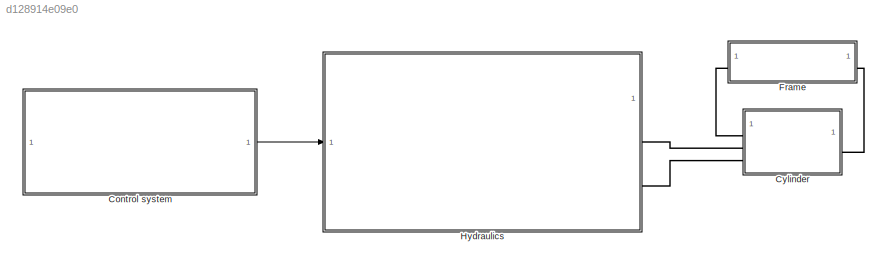
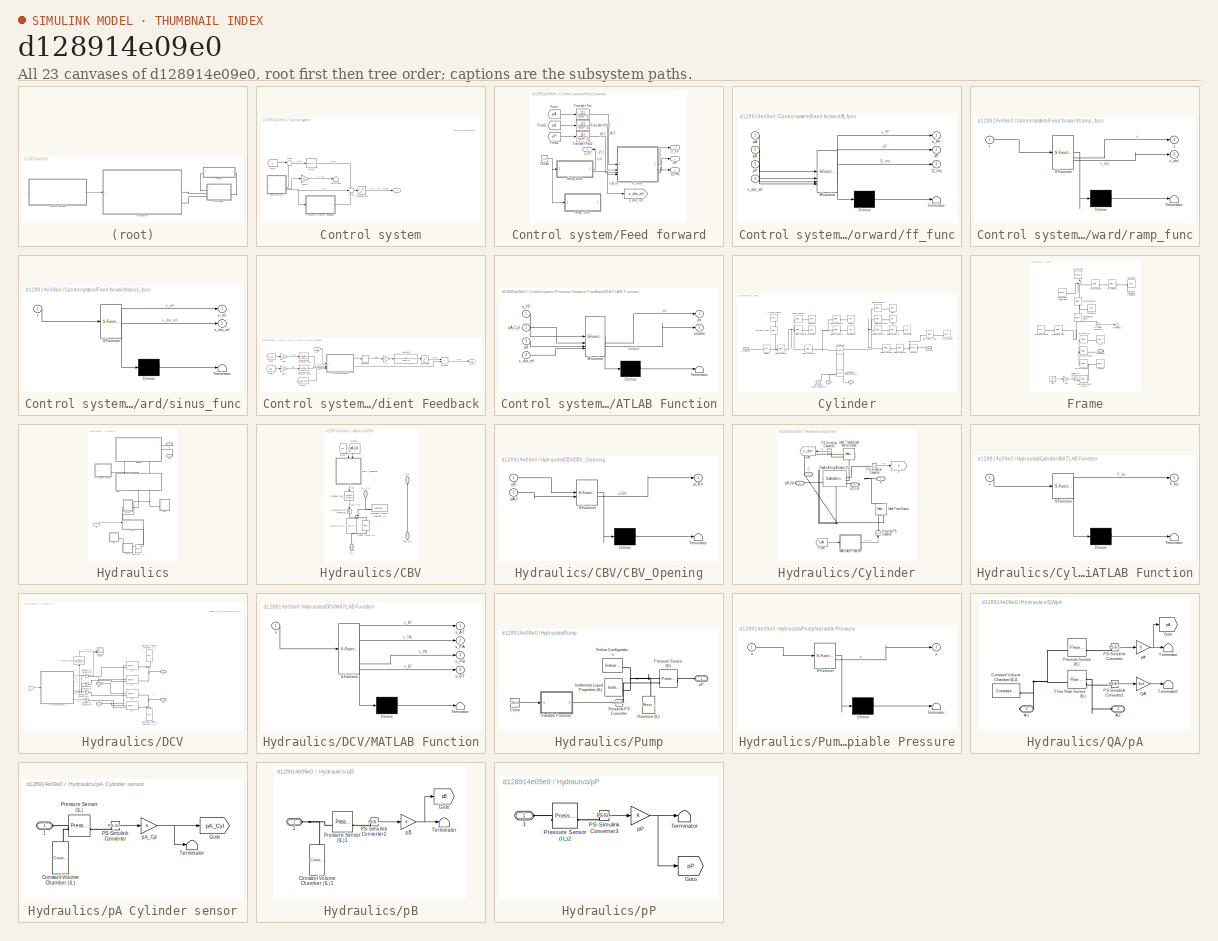
[diagram: thumbnail index - all 23 canvases of the model, root first then tree order]
MODEL slx_d128914e09e0
KIND model
CONFIG AbsTol = auto
CONFIG EnableMultiTasking = off
CONFIG FixedStep = auto
CONFIG MaxStep = auto
CONFIG MinStep = auto
CONFIG RelTol = 1e-3
CONFIG SampleTimeConstraint = Unconstrained
CONFIG SolverName = VariableStepAuto
CONFIG StartTime = 0.0
CONFIG StopTime = 80
WORKSPACE source: MATLAB code (in-file)
WORKSPACE code: clear;
WORKSPACE rho = 875
WORKSPACE beta = 1000
WORKSPACE pP = 10e6  (= 10000000)
WORKSPACE pA_Cyl_Initial = 67
WORKSPACE dp0 = 20e5  (= 2000000)
WORKSPACE Q0 = 18/6e4  (= 0.0003)
WORKSPACE Cd = 0.55
WORKSPACE AdMax_SI = Q0/(Cd*(2/rho*dp0)^0.5)  (= 8.06738152241e-06)
WORKSPACE AdMax = AdMax_SI*1e6  (= 8.06738152241)
WORKSPACE Tau_DCV = 0.1
WORKSPACE TauP = 1/(2*pi*5)  (= 0.0318309886184)
WORKSPACE u_dead_up = 0.236
WORKSPACE u_dead_down = 0.206
WORKSPACE spool_dead_up = 1.1182 * u_dead_up   - 0.0325  (= 0.2313952)
WORKSPACE spool_dead_down = 1.1075 * u_dead_down - 0.0416  (= 0.186545)
WORKSPACE p_spool_of_Kv_up = [0.0018653, -0.033672,  0.22033, -0.65618,  0.83411, -0.047269, 0.26252]
WORKSPACE p_spool_of_Kv_down = [0.00098272, -0.017507,  0.11599, -0.34851,  0.41222,  0.17643,  0.2076]
WORKSPACE slope_Kv_up = 0.3410  (= 0.341)
WORKSPACE slope_Kv_down = 0.4248
WORKSPACE Kv_range = linspace(0.09, 4, 10000)
WORKSPACE spool_up = polyval(p_spool_of_Kv_up,   Kv_range)
WORKSPACE spool_down = polyval(p_spool_of_Kv_down, Kv_range)
WORKSPACE u_breakpoints = 0.25:0.05:1.0
WORKSPACE spool_bp_up = 1.1182 * u_breakpoints - 0.0325
WORKSPACE spool_bp_down = 1.1075 * u_breakpoints - 0.0416
WORKSPACE Kv_bp_up = zeros(1, length(u_breakpoints))
WORKSPACE Kv_bp_down = zeros(1, length(u_breakpoints))
WORKSPACE code: for i = 1:length(u_breakpoints)
WORKSPACE code: if u_breakpoints(i) <= 0.25
WORKSPACE code: Kv_bp_up(i)   = (spool_bp_up(i)   - spool_dead_up)   / slope_Kv_up;
WORKSPACE code: Kv_bp_down(i) = (spool_bp_down(i) - spool_dead_down) / slope_Kv_down;
WORKSPACE code: else
WORKSPACE code: [~, idx_up]   = min(abs(spool_up   - spool_bp_up(i)));
WORKSPACE code: [~, idx_down] = min(abs(spool_down - spool_bp_down(i)));
WORKSPACE code: Kv_bp_up(i)   = Kv_range(idx_up);
WORKSPACE code: Kv_bp_down(i) = Kv_range(idx_down);
WORKSPACE code: end
WORKSPACE code: end
WORKSPACE code: [~, idx_max_up]   = max(spool_up);
WORKSPACE code: [~, idx_max_down] = max(spool_down);
WORKSPACE Kv_max_up = Kv_range(idx_max_up)
WORKSPACE Kv_max_down = Kv_range(idx_max_down)
WORKSPACE Kv_unit_conv = sqrt(1e-5) / 6e4
WORKSPACE A_bp_up = (Kv_bp_up   * Kv_unit_conv) / (Cd * sqrt(2/rho))
WORKSPACE A_bp_down = (Kv_bp_down * Kv_unit_conv) / (Cd * sqrt(2/rho))
WORKSPACE A_max_up = (Kv_max_up  * Kv_unit_conv) / (Cd * sqrt(2/rho))
WORKSPACE A_max_down = (Kv_max_down* Kv_unit_conv) / (Cd * sqrt(2/rho))
WORKSPACE orifice_area_up = [1e-9, A_bp_up,   A_max_up]
WORKSPACE orifice_area_down = [1e-9, A_bp_down, A_max_down]
WORKSPACE u_max_pos = 1.05
WORKSPACE control_pos_up = [0, spool_bp_up,   1.1182 * u_max_pos - 0.0325]
WORKSPACE control_pos_down = [0, spool_bp_down, 1.1075 * u_max_pos - 0.0416]
WORKSPACE alpha = 5
WORKSPACE pCr_A = 215e5  (= 21500000)
WORKSPACE dp_open_A = 150e5  (= 15000000)
WORKSPACE Cd_CBV = 0.8
WORKSPACE AdMax_CBV = (60 / 6e4) / sqrt(2/rho * 16e5) / Cd_CBV
WORKSPACE d = 65
WORKSPACE dr = 35
WORKSPACE A = pi*d^2/4  (= 3318.30724035)
WORKSPACE Ar = pi*dr^2/4  (= 962.112750162)
WORKSPACE Aa = A - Ar  (= 2356.19449019)
WORKSPACE h = 500
WORKSPACE L0 = 272
WORKSPACE dx = 0
WORKSPACE L = h + L0 + dx  (= 772)
WORKSPACE phiA = Aa/A  (= 0.710059171598)
WORKSPACE m = 75*4 + 20 + 90  (= 410)
WORKSPACE g = 9.81
WORKSPACE MG = m*g  (= 4022.1)
WORKSPACE x_Init = 100
WORKSPACE Cx = 427
WORKSPACE Cz = -1057
WORKSPACE theta_Init = 73.04- 90  (= -16.96)
WORKSPACE thetaDot_Init = 0
WORKSPACE L1 = 3680
WORKSPACE B1 = 100
WORKSPACE H1 = 150
WORKSPACE t1 = 6
WORKSPACE revBasePinDia = 60
WORKSPACE revBasePinLength = 185.5
WORKSPACE rEar = 35
WORKSPACE tEar = 30
WORKSPACE earToCylTop = 52.45
WORKSPACE earToCylBot = 40.62
WORKSPACE cylDia = 75
WORKSPACE cylLength = 682
WORKSPACE rodLength = 565.26
WORKSPACE rodDia = 35
WORKSPACE rodToCyl = 132
WORKSPACE revCylPinDia = 25
WORKSPACE revCylPinLength = 84
WORKSPACE rPiston = 65/2  (= 32.5)
WORKSPACE tPiston = 40
WORKSPACE abx = 564.99
WORKSPACE aby = 133
WORKSPACE L2 = 210
WORKSPACE B2 = 700
WORKSPACE H2 = 300
WORKSPACE dY_PL_Beam = 75
WORKSPACE beam_mass = 415.740  (= 415.74)
WORKSPACE beam_COM = [3216.15, 61.48, 0.00]
WORKSPACE cyl_house_mass = 10.46699
WORKSPACE cyl_house_COM = [260.99, 0.16, 0.00]
WORKSPACE cyl_rod_mass = 4.81658
WORKSPACE cyl_rod_COM = [-292.43, 0.00, 0.00]
WORKSPACE beam_MOI = [17.5673, 453.1288, 442.0275]
WORKSPACE beam_POI = [13.7279, 0.00000, 0.00000]
WORKSPACE cyl_house_MOI = [0.00969, 0.50582, 0.50623]
WORKSPACE cyl_house_POI = [-0.00039, 0.00000, 0.00000]
WORKSPACE cyl_rod_MOI = [0.00142, 0.20919, 0.20942]
WORKSPACE cyl_rod_POI = [0.00000, 0.00000, 0.00000]
WORKSPACE F_C = 609
WORKSPACE v_th = 1e-3  (= 0.001)
WORKSPACE dt = 0.001
WORKSPACE TauF = 0.01
WORKSPACE Kf = 0.0005
BLOCK [SubSystem] Control system
BLOCK [SubSystem] Control system/Feed forward
BLOCK [Clock] Control system/Feed forward/Clock1
BLOCK [From] Control system/Feed forward/From
  GotoTag = pA
  TagVisibility = global
BLOCK [From] Control system/Feed forward/From1
  GotoTag = pB
  TagVisibility = global
BLOCK [From] Control system/Feed forward/From2
  GotoTag = pP
  TagVisibility = global
BLOCK [Outport] Control system/Feed forward/Q_req
  Port = 3
BLOCK [TransferFcn] Control system/Feed forward/Transfer Fcn
  Denominator = [TauP 1]
BLOCK [TransferFcn] Control system/Feed forward/Transfer Fcn1
  Denominator = [TauP 1]
BLOCK [TransferFcn] Control system/Feed forward/Transfer Fcn2
  Denominator = [TauP 1]
BLOCK [Outport] Control system/Feed forward/dP
BLOCK [SubSystem] Control system/Feed forward/ff_func
  ErrorFcn = Stateflow.Translate.translate
  PermitHierarchicalResolution = ExplicitOnly
  SFBlockType = MATLAB Function
  TreatAsAtomicUnit = on
BLOCK [Demux] Control system/Feed forward/ff_func/ Demux 
  Outputs = 1
BLOCK [S-Function] Control system/Feed forward/ff_func/ SFunction 
  EnableBusSupport = off
  FunctionName = sf_sfun
  Parameters = A,Aa,slope_Kv_down,slope_Kv_up,spool_dead_down,spool_dead_up
  PortCounts = [4 4]
  SFcnIsStateOwnerBlock = off
  SFunctionDeploymentMode = off
  Tag = Stateflow S-Function 3
BLOCK [Terminator] Control system/Feed forward/ff_func/ Terminator 
BLOCK [Outport] Control system/Feed forward/ff_func/Q_req
  Port = 3
BLOCK [Outport] Control system/Feed forward/ff_func/dP
  Port = 2
BLOCK [Inport] Control system/Feed forward/ff_func/pA
BLOCK [Inport] Control system/Feed forward/ff_func/pB
  Port = 2
BLOCK [Inport] Control system/Feed forward/ff_func/pP
  Port = 3
BLOCK [Outport] Control system/Feed forward/ff_func/u_FF
BLOCK [Inport] Control system/Feed forward/ff_func/x_dot_ref
  Port = 4
BLOCK [SubSystem] Control system/Feed forward/ramp_func
  Commented = on
  ErrorFcn = Stateflow.Translate.translate
  PermitHierarchicalResolution = ExplicitOnly
  SFBlockType = MATLAB Function
  TreatAsAtomicUnit = on
BLOCK [Demux] Control system/Feed forward/ramp_func/ Demux 
  Outputs = 1
BLOCK [S-Function] Control system/Feed forward/ramp_func/ SFunction 
  EnableBusSupport = off
  FunctionName = sf_sfun
  PortCounts = [1 3]
  SFcnIsStateOwnerBlock = off
  SFunctionDeploymentMode = off
  Tag = Stateflow S-Function 4
BLOCK [Terminator] Control system/Feed forward/ramp_func/ Terminator 
BLOCK [Inport] Control system/Feed forward/ramp_func/t
BLOCK [Outport] Control system/Feed forward/ramp_func/x
BLOCK [Outport] Control system/Feed forward/ramp_func/x_dot
  Port = 2
BLOCK [SubSystem] Control system/Feed forward/sinus_func
  ErrorFcn = Stateflow.Translate.translate
  PermitHierarchicalResolution = ExplicitOnly
  SFBlockType = MATLAB Function
  TreatAsAtomicUnit = on
BLOCK [Demux] Control system/Feed forward/sinus_func/ Demux 
  Outputs = 1
BLOCK [S-Function] Control system/Feed forward/sinus_func/ SFunction 
  EnableBusSupport = off
  FunctionName = sf_sfun
  PortCounts = [1 3]
  SFcnIsStateOwnerBlock = off
  SFunctionDeploymentMode = off
  Tag = Stateflow S-Function 2
BLOCK [Terminator] Control system/Feed forward/sinus_func/ Terminator 
BLOCK [Inport] Control system/Feed forward/sinus_func/t
BLOCK [Outport] Control system/Feed forward/sinus_func/x_dot_ref
  Port = 2
BLOCK [Outport] Control system/Feed forward/sinus_func/x_ref
BLOCK [Outport] Control system/Feed forward/u_FF
  Port = 4
BLOCK [Goto] Control system/Feed forward/x_dot_ref
  GotoTag = x_dot_ref
  TagVisibility = global
BLOCK [Outport] Control system/Feed forward/x_ref
  Port = 2
BLOCK [From] Control system/From
  GotoTag = x
  TagVisibility = global
BLOCK [Gain] Control system/Gain
  Gain = 6e3
BLOCK [Reference] Control system/PID  REF=slpidlib/PID Controller
  LibrarySourceBlock = simulink/Continuous/PID Controller
  SourceBlock = slpidlib/PID Controller
  SourceType = PID 1dof
BLOCK [SubSystem] Control system/Pressure Gradient Feedback
BLOCK [Derivative] Control system/Pressure Gradient Feedback/Derivative
BLOCK [From] Control system/Pressure Gradient Feedback/From
  GotoTag = pA_Cyl
  TagVisibility = global
BLOCK [From] Control system/Pressure Gradient Feedback/From1
  GotoTag = pB
  TagVisibility = global
BLOCK [From] Control system/Pressure Gradient Feedback/From5
  GotoTag = x_dot_ref
  TagVisibility = global
BLOCK [Gain] Control system/Pressure Gradient Feedback/Kf
  Gain = Kf
BLOCK [TransferFcn] Control system/Pressure Gradient Feedback/Low-pass
  Denominator = [TauF 1]
BLOCK [SubSystem] Control system/Pressure Gradient Feedback/MATLAB Function
  ErrorFcn = Stateflow.Translate.translate
  PermitHierarchicalResolution = ExplicitOnly
  SFBlockType = MATLAB Function
  TreatAsAtomicUnit = on
BLOCK [Demux] Control system/Pressure Gradient Feedback/MATLAB Function/ Demux 
  Outputs = 1
BLOCK [S-Function] Control system/Pressure Gradient Feedback/MATLAB Function/ SFunction 
  EnableBusSupport = off
  FunctionName = sf_sfun
  Parameters = phiA
  PortCounts = [4 3]
  SFcnIsStateOwnerBlock = off
  SFunctionDeploymentMode = off
  Tag = Stateflow S-Function 8
BLOCK [Terminator] Control system/Pressure Gradient Feedback/MATLAB Function/ Terminator 
BLOCK [Outport] Control system/Pressure Gradient Feedback/MATLAB Function/enable
  Port = 2
BLOCK [Inport] Control system/Pressure Gradient Feedback/MATLAB Function/pA_Cyl
  Port = 2
BLOCK [Inport] Control system/Pressure Gradient Feedback/MATLAB Function/pB
  Port = 3
BLOCK [Outport] Control system/Pressure Gradient Feedback/MATLAB Function/px
BLOCK [Inport] Control system/Pressure Gradient Feedback/MATLAB Function/u_FF
BLOCK [Inport] Control system/Pressure Gradient Feedback/MATLAB Function/x_dot_ref
  Port = 4
BLOCK [Product] Control system/Pressure Gradient Feedback/Product
BLOCK [Saturate] Control system/Pressure Gradient Feedback/Saturation
  LowerLimit = -0.1
  UpperLimit = 0.1
BLOCK [TransferFcn] Control system/Pressure Gradient Feedback/Transfer Fcn
  Denominator = [TauP 1]
BLOCK [TransferFcn] Control system/Pressure Gradient Feedback/Transfer Fcn1
  Denominator = [TauP 1]
BLOCK [Gain] Control system/Pressure Gradient Feedback/bar
  Gain = 1e-5
BLOCK [Gain] Control system/Pressure Gradient Feedback/bar1
  Gain = 1e-5
BLOCK [Inport] Control system/Pressure Gradient Feedback/u_FF
BLOCK [Outport] Control system/Pressure Gradient Feedback/u_pfb
BLOCK [Saturate] Control system/Saturation1
  LowerLimit = -1
  UpperLimit = 1
BLOCK [Sum] Control system/Sum
  Inputs = |-+
BLOCK [Sum] Control system/Sum1
  Inputs = ++-
BLOCK [Terminator] Control system/Terminator
BLOCK [Outport] Control system/u
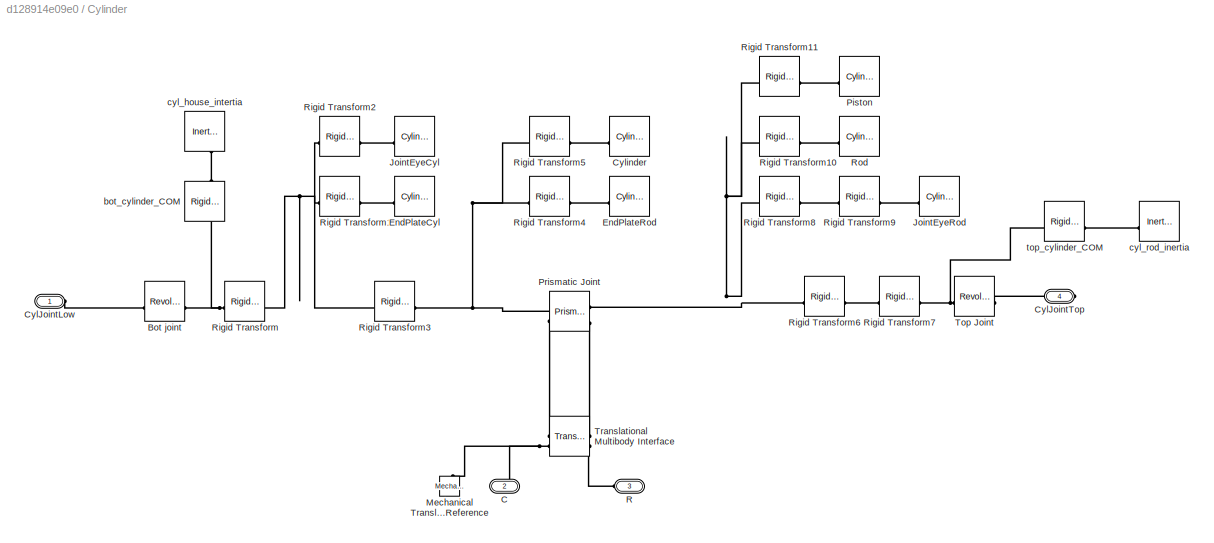
BLOCK [SubSystem] Cylinder
BLOCK [Reference] Cylinder/Bot joint  REF=sm_lib/Joints/Revolute Joint
  SourceBlock = sm_lib/Joints/Revolute Joint
  SourceType = Revolute Joint
BLOCK [PMIOPort] Cylinder/C
  Port = 2
  Side = Left
BLOCK [PMIOPort] Cylinder/CylJointLow
  Side = Left
BLOCK [PMIOPort] Cylinder/CylJointTop
  Port = 4
  Side = Right
BLOCK [Reference] Cylinder/Cylinder  REF=sm_lib/Body Elements/Cylindrical Solid
  SourceBlock = sm_lib/Body Elements/Cylindrical Solid
  SourceType = Cylindrical Solid
BLOCK [Reference] Cylinder/EndPlateCyl  REF=sm_lib/Body Elements/Cylindrical Solid
  Commented = on
  SourceBlock = sm_lib/Body Elements/Cylindrical Solid
  SourceType = Cylindrical Solid
BLOCK [Reference] Cylinder/EndPlateRod  REF=sm_lib/Body Elements/Cylindrical Solid
  Commented = on
  SourceBlock = sm_lib/Body Elements/Cylindrical Solid
  SourceType = Cylindrical Solid
BLOCK [Reference] Cylinder/JointEyeCyl  REF=sm_lib/Body Elements/Cylindrical Solid
  SourceBlock = sm_lib/Body Elements/Cylindrical Solid
  SourceType = Cylindrical Solid
BLOCK [Reference] Cylinder/JointEyeRod  REF=sm_lib/Body Elements/Cylindrical Solid
  SourceBlock = sm_lib/Body Elements/Cylindrical Solid
  SourceType = Cylindrical Solid
BLOCK [Reference] Cylinder/Mechanical Translational Reference  REF=fl_lib/Mechanical/Translational
Elements/Mechanical
Translational
Reference
  NameLocation = right
  SourceBlock = fl_lib/Mechanical/Translational\nElements/Mechanical\nTranslational\nReference
  SourceType = Mechanical\nTranslational\nReference
BLOCK [Reference] Cylinder/Piston  REF=sm_lib/Body Elements/Cylindrical Solid
  SourceBlock = sm_lib/Body Elements/Cylindrical Solid
  SourceType = Cylindrical Solid
BLOCK [Reference] Cylinder/Prismatic Joint  REF=sm_lib/Joints/Prismatic
Joint
  SourceBlock = sm_lib/Joints/Prismatic\nJoint
  SourceType = Prismatic\nJoint
BLOCK [PMIOPort] Cylinder/R
  Port = 3
  Side = Left
BLOCK [Reference] Cylinder/Rigid Transform  REF=sm_lib/Frames and
Transforms/Rigid
Transform
  SourceBlock = sm_lib/Frames and\nTransforms/Rigid\nTransform
  SourceType = Rigid\nTransform
BLOCK [Reference] Cylinder/Rigid Transform1  REF=sm_lib/Frames and
Transforms/Rigid
Transform
  Commented = on
  SourceBlock = sm_lib/Frames and\nTransforms/Rigid\nTransform
  SourceType = Rigid\nTransform
BLOCK [Reference] Cylinder/Rigid Transform10  REF=sm_lib/Frames and
Transforms/Rigid
Transform
  SourceBlock = sm_lib/Frames and\nTransforms/Rigid\nTransform
  SourceType = Rigid\nTransform
BLOCK [Reference] Cylinder/Rigid Transform11  REF=sm_lib/Frames and
Transforms/Rigid
Transform
  SourceBlock = sm_lib/Frames and\nTransforms/Rigid\nTransform
  SourceType = Rigid\nTransform
BLOCK [Reference] Cylinder/Rigid Transform2  REF=sm_lib/Frames and
Transforms/Rigid
Transform
  SourceBlock = sm_lib/Frames and\nTransforms/Rigid\nTransform
  SourceType = Rigid\nTransform
BLOCK [Reference] Cylinder/Rigid Transform3  REF=sm_lib/Frames and
Transforms/Rigid
Transform
  SourceBlock = sm_lib/Frames and\nTransforms/Rigid\nTransform
  SourceType = Rigid\nTransform
BLOCK [Reference] Cylinder/Rigid Transform4  REF=sm_lib/Frames and
Transforms/Rigid
Transform
  Commented = on
  SourceBlock = sm_lib/Frames and\nTransforms/Rigid\nTransform
  SourceType = Rigid\nTransform
BLOCK [Reference] Cylinder/Rigid Transform5  REF=sm_lib/Frames and
Transforms/Rigid
Transform
  SourceBlock = sm_lib/Frames and\nTransforms/Rigid\nTransform
  SourceType = Rigid\nTransform
BLOCK [Reference] Cylinder/Rigid Transform6  REF=sm_lib/Frames and
Transforms/Rigid
Transform
  SourceBlock = sm_lib/Frames and\nTransforms/Rigid\nTransform
  SourceType = Rigid\nTransform
BLOCK [Reference] Cylinder/Rigid Transform7  REF=sm_lib/Frames and
Transforms/Rigid
Transform
  SourceBlock = sm_lib/Frames and\nTransforms/Rigid\nTransform
  SourceType = Rigid\nTransform
BLOCK [Reference] Cylinder/Rigid Transform8  REF=sm_lib/Frames and
Transforms/Rigid
Transform
  SourceBlock = sm_lib/Frames and\nTransforms/Rigid\nTransform
  SourceType = Rigid\nTransform
BLOCK [Reference] Cylinder/Rigid Transform9  REF=sm_lib/Frames and
Transforms/Rigid
Transform
  SourceBlock = sm_lib/Frames and\nTransforms/Rigid\nTransform
  SourceType = Rigid\nTransform
BLOCK [Reference] Cylinder/Rod  REF=sm_lib/Body Elements/Cylindrical Solid
  SourceBlock = sm_lib/Body Elements/Cylindrical Solid
  SourceType = Cylindrical Solid
BLOCK [Reference] Cylinder/Top Joint  REF=sm_lib/Joints/Revolute Joint
  SourceBlock = sm_lib/Joints/Revolute Joint
  SourceType = Revolute Joint
BLOCK [Reference] Cylinder/Translational Multibody Interface  REF=fl_lib/Mechanical/Multibody Interfaces/Translational
Multibody Interface
  SourceBlock = fl_lib/Mechanical/Multibody Interfaces/Translational\nMultibody Interface
  SourceType = Translational\nMultibody Interface
BLOCK [Reference] Cylinder/bot_cylinder_COM  REF=sm_lib/Frames and
Transforms/Rigid
Transform
  NameLocation = left
  SourceBlock = sm_lib/Frames and\nTransforms/Rigid\nTransform
  SourceType = Rigid\nTransform
BLOCK [Reference] Cylinder/cyl_house_intertia  REF=sm_lib/Body Elements/Inertia
  NameLocation = left
  SourceBlock = sm_lib/Body Elements/Inertia
  SourceType = Inertia
BLOCK [Reference] Cylinder/cyl_rod_inertia  REF=sm_lib/Body Elements/Inertia
  NameLocation = top
  SourceBlock = sm_lib/Body Elements/Inertia
  SourceType = Inertia
BLOCK [Reference] Cylinder/top_cylinder_COM  REF=sm_lib/Frames and
Transforms/Rigid
Transform
  SourceBlock = sm_lib/Frames and\nTransforms/Rigid\nTransform
  SourceType = Rigid\nTransform
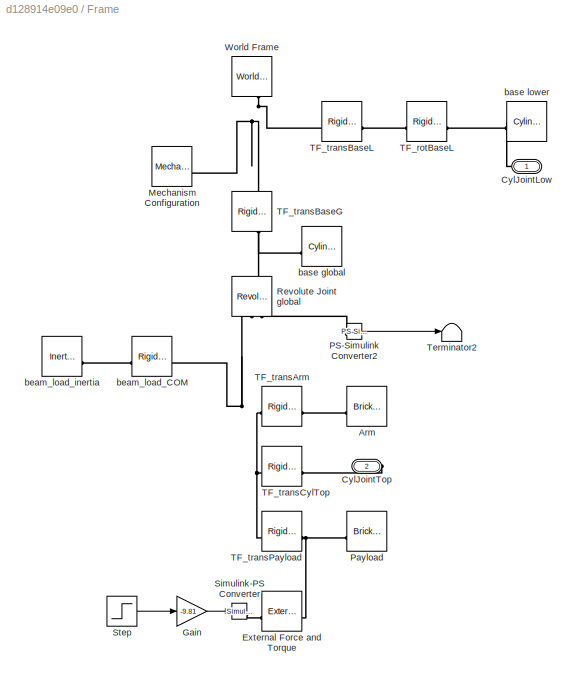
BLOCK [SubSystem] Frame
BLOCK [Reference] Frame/Arm  REF=sm_lib/Body Elements/Brick Solid
  SourceBlock = sm_lib/Body Elements/Brick Solid
  SourceType = Brick Solid
BLOCK [PMIOPort] Frame/CylJointLow
  Side = Left
BLOCK [PMIOPort] Frame/CylJointTop
  Port = 2
  Side = Right
BLOCK [Reference] Frame/External Force and Torque  REF=sm_lib/Forces and
Torques/External Force
and Torque
  Commented = on
  SourceBlock = sm_lib/Forces and\nTorques/External Force\nand Torque
  SourceType = External Force\nand Torque
BLOCK [Gain] Frame/Gain
  Commented = on
  Gain = -9.81
BLOCK [Reference] Frame/Mechanism Configuration  REF=sm_lib/Utilities/Mechanism
Configuration
  SourceBlock = sm_lib/Utilities/Mechanism\nConfiguration
  SourceType = Mechanism\nConfiguration
BLOCK [Reference] Frame/PS-Simulink Converter2  REF=nesl_utility/PS-Simulink
Converter
  SourceBlock = nesl_utility/PS-Simulink\nConverter
  SourceType = PS-Simulink\nConverter
BLOCK [Reference] Frame/Payload  REF=sm_lib/Body Elements/Brick Solid
  SourceBlock = sm_lib/Body Elements/Brick Solid
  SourceType = Brick Solid
BLOCK [Reference] Frame/Revolute Joint global  REF=sm_lib/Joints/Revolute Joint
  NameLocation = left
  SourceBlock = sm_lib/Joints/Revolute Joint
  SourceType = Revolute Joint
BLOCK [Reference] Frame/Simulink-PS Converter  REF=nesl_utility/Simulink-PS
Converter
  Commented = on
  SourceBlock = nesl_utility/Simulink-PS\nConverter
  SourceType = Simulink-PS\nConverter
BLOCK [Step] Frame/Step
  After = 200
  Commented = on
  SampleTime = 0
  Time = 35
BLOCK [Reference] Frame/TF_rotBaseL  REF=sm_lib/Frames and
Transforms/Rigid
Transform
  SourceBlock = sm_lib/Frames and\nTransforms/Rigid\nTransform
  SourceType = Rigid\nTransform
BLOCK [Reference] Frame/TF_transArm  REF=sm_lib/Frames and
Transforms/Rigid
Transform
  SourceBlock = sm_lib/Frames and\nTransforms/Rigid\nTransform
  SourceType = Rigid\nTransform
BLOCK [Reference] Frame/TF_transBaseG  REF=sm_lib/Frames and
Transforms/Rigid
Transform
  NameLocation = left
  SourceBlock = sm_lib/Frames and\nTransforms/Rigid\nTransform
  SourceType = Rigid\nTransform
BLOCK [Reference] Frame/TF_transBaseL  REF=sm_lib/Frames and
Transforms/Rigid
Transform
  SourceBlock = sm_lib/Frames and\nTransforms/Rigid\nTransform
  SourceType = Rigid\nTransform
BLOCK [Reference] Frame/TF_transCylTop  REF=sm_lib/Frames and
Transforms/Rigid
Transform
  SourceBlock = sm_lib/Frames and\nTransforms/Rigid\nTransform
  SourceType = Rigid\nTransform
BLOCK [Reference] Frame/TF_transPayload  REF=sm_lib/Frames and
Transforms/Rigid
Transform
  SourceBlock = sm_lib/Frames and\nTransforms/Rigid\nTransform
  SourceType = Rigid\nTransform
BLOCK [Terminator] Frame/Terminator2
BLOCK [Reference] Frame/World Frame  REF=sm_lib/Frames and
Transforms/World Frame
  NameLocation = left
  SourceBlock = sm_lib/Frames and\nTransforms/World Frame
  SourceType = World Frame
BLOCK [Reference] Frame/base global  REF=sm_lib/Body Elements/Cylindrical Solid
  SourceBlock = sm_lib/Body Elements/Cylindrical Solid
  SourceType = Cylindrical Solid
BLOCK [Reference] Frame/base lower  REF=sm_lib/Body Elements/Cylindrical Solid
  SourceBlock = sm_lib/Body Elements/Cylindrical Solid
  SourceType = Cylindrical Solid
BLOCK [Reference] Frame/beam_load_COM  REF=sm_lib/Frames and
Transforms/Rigid
Transform
  SourceBlock = sm_lib/Frames and\nTransforms/Rigid\nTransform
  SourceType = Rigid\nTransform
BLOCK [Reference] Frame/beam_load_inertia  REF=sm_lib/Body Elements/Inertia
  SourceBlock = sm_lib/Body Elements/Inertia
  SourceType = Inertia
BLOCK [SubSystem] Hydraulics
BLOCK [PMIOPort] Hydraulics/C
  Side = Right
BLOCK [SubSystem] Hydraulics/CBV
BLOCK [SubSystem] Hydraulics/CBV/CBV_Opening
  ErrorFcn = Stateflow.Translate.translate
  NameLocation = right
  PermitHierarchicalResolution = ExplicitOnly
  SFBlockType = MATLAB Function
  TreatAsAtomicUnit = on
BLOCK [Demux] Hydraulics/CBV/CBV_Opening/ Demux 
  Outputs = 1
BLOCK [S-Function] Hydraulics/CBV/CBV_Opening/ SFunction 
  EnableBusSupport = off
  FunctionName = sf_sfun
  Parameters = alpha,dp_open_A,pCr_A
  PortCounts = [2 2]
  SFcnIsStateOwnerBlock = off
  SFunctionDeploymentMode = off
  Tag = Stateflow S-Function 1
BLOCK [Terminator] Hydraulics/CBV/CBV_Opening/ Terminator 
BLOCK [Inport] Hydraulics/CBV/CBV_Opening/pA2
  Port = 2
BLOCK [Inport] Hydraulics/CBV/CBV_Opening/pB
BLOCK [Outport] Hydraulics/CBV/CBV_Opening/uCBV
BLOCK [Reference] Hydraulics/CBV/Check Valve (IL)  REF=SimscapeFluids_lib/Isothermal Liquid/Valves & Orifices/Directional Control
Valves/Check Valve (IL)
  NameLocation = right
  SourceBlock = SimscapeFluids_lib/Isothermal Liquid/Valves & Orifices/Directional Control\nValves/Check Valve (IL)
  SourceType = Check Valve (IL)
BLOCK [Reference] Hydraulics/CBV/Constant Volume Chamber (IL)  REF=fl_lib/Isothermal Liquid/Elements/Constant Volume
Chamber (IL)
  SourceBlock = fl_lib/Isothermal Liquid/Elements/Constant Volume\nChamber (IL)
  SourceType = Constant Volume\nChamber (IL)
BLOCK [From] Hydraulics/CBV/From
  GotoTag = pB
  NameLocation = left
  TagVisibility = global
BLOCK [From] Hydraulics/CBV/From2
  GotoTag = pA_Cyl
  NameLocation = left
  TagVisibility = global
BLOCK [Reference] Hydraulics/CBV/Orifice (IL)1  REF=SimscapeFluids_lib/Isothermal Liquid/Valves & Orifices/Orifices/Orifice (IL)
  NameLocation = left
  SourceBlock = SimscapeFluids_lib/Isothermal Liquid/Valves & Orifices/Orifices/Orifice (IL)
  SourceType = Orifice (IL)
BLOCK [Reference] Hydraulics/CBV/Simulink-PS Converter  REF=nesl_utility/Simulink-PS
Converter
  NameLocation = left
  SourceBlock = nesl_utility/Simulink-PS\nConverter
  SourceType = Simulink-PS\nConverter
BLOCK [TransferFcn] Hydraulics/CBV/Transfer Fcn
  Denominator = [1/(2*pi*0.5) 1]
  NameLocation = left
BLOCK [PMIOPort] Hydraulics/CBV/p_A
  NameLocation = right
  Side = Left
BLOCK [PMIOPort] Hydraulics/CBV/p_A_Cyl
  NameLocation = right
  Port = 3
  Side = Right
BLOCK [PMIOPort] Hydraulics/CBV/p_B
  NameLocation = left
  Port = 2
  Side = Left
BLOCK [PMIOPort] Hydraulics/CBV/p_B_Cyl
  NameLocation = right
  Port = 4
  Side = Right
BLOCK [SubSystem] Hydraulics/Cylinder
  PortSchema = {"entries":[{"content":{"sides":[{"content":{},"type":"ConnectorPlacement.EquallySpacedRectSide","uuid":"e1757439-da3d-4938-a6aa-60b047833215"},{"content":{"connectorIds":["RConn1","RConn2"],"side":"RIGHT"},"type":"ConnectorPlacement.EquallySpacedRectSide","uuid":"99876049-c36c-43ae-a9a7-33d45793de45"},{"content":{"side":"TOP"},"type":"ConnectorPlacement.EquallySpacedRectSide","uuid":"2c75668b-381...<+372ch>
BLOCK [PMIOPort] Hydraulics/Cylinder/C
  Side = Right
BLOCK [Reference] Hydraulics/Cylinder/Double-Acting Actuator (IL)  REF=SimscapeFluids_lib/Isothermal Liquid/Actuators/Double-Acting
Actuator (IL)
  SourceBlock = SimscapeFluids_lib/Isothermal Liquid/Actuators/Double-Acting\nActuator (IL)
  SourceType = Double-Acting\nActuator (IL)
BLOCK [From] Hydraulics/Cylinder/From
  GotoTag = x_dot
  TagVisibility = global
BLOCK [Reference] Hydraulics/Cylinder/Ideal Force Source  REF=fl_lib/Mechanical/Mechanical Sources/Ideal Force Source
  NameLocation = right
  SourceBlock = fl_lib/Mechanical/Mechanical Sources/Ideal Force Source
  SourceType = Ideal Force Source
BLOCK [Reference] Hydraulics/Cylinder/Ideal Translational Motion Sensor  REF=fl_lib/Mechanical/Mechanical Sensors/Ideal Translational
Motion Sensor
  NameLocation = top
  SourceBlock = fl_lib/Mechanical/Mechanical Sensors/Ideal Translational\nMotion Sensor
  SourceType = Ideal Translational\nMotion Sensor
BLOCK [SubSystem] Hydraulics/Cylinder/MATLAB Function
  ErrorFcn = Stateflow.Translate.translate
  PermitHierarchicalResolution = ExplicitOnly
  SFBlockType = MATLAB Function
  TreatAsAtomicUnit = on
BLOCK [Demux] Hydraulics/Cylinder/MATLAB Function/ Demux 
  Outputs = 1
BLOCK [S-Function] Hydraulics/Cylinder/MATLAB Function/ SFunction 
  EnableBusSupport = off
  FunctionName = sf_sfun
  Parameters = F_C,v_th
  PortCounts = [1 2]
  SFcnIsStateOwnerBlock = off
  SFunctionDeploymentMode = off
  Tag = Stateflow S-Function 6
BLOCK [Terminator] Hydraulics/Cylinder/MATLAB Function/ Terminator 
BLOCK [Outport] Hydraulics/Cylinder/MATLAB Function/F_fric
BLOCK [Inport] Hydraulics/Cylinder/MATLAB Function/v
BLOCK [Reference] Hydraulics/Cylinder/PS-Simulink Converter  REF=nesl_utility/PS-Simulink
Converter
  NameLocation = top
  SourceBlock = nesl_utility/PS-Simulink\nConverter
  SourceType = PS-Simulink\nConverter
BLOCK [Reference] Hydraulics/Cylinder/PS-Simulink Converter1  REF=nesl_utility/PS-Simulink
Converter
  NameLocation = top
  SourceBlock = nesl_utility/PS-Simulink\nConverter
  SourceType = PS-Simulink\nConverter
BLOCK [PMIOPort] Hydraulics/Cylinder/R
  Port = 2
  Side = Right
BLOCK [Reference] Hydraulics/Cylinder/Simulink-PS Converter  REF=nesl_utility/Simulink-PS
Converter
  NameLocation = right
  SourceBlock = nesl_utility/Simulink-PS\nConverter
  SourceType = Simulink-PS\nConverter
BLOCK [PMIOPort] Hydraulics/Cylinder/p_A_Cyl
  Port = 3
  Side = Right
BLOCK [PMIOPort] Hydraulics/Cylinder/p_B_Cyl
  Port = 4
  Side = Right
BLOCK [Goto] Hydraulics/Cylinder/x
  GotoTag = x
  TagVisibility = global
BLOCK [Goto] Hydraulics/Cylinder/x_dot
  GotoTag = x_dot
  TagVisibility = global
BLOCK [SubSystem] Hydraulics/DCV
  PortSchema = {"entries":[{"content":{"sides":[{"content":{"connectorIds":["In1"]},"type":"ConnectorPlacement.EquallySpacedRectSide","uuid":"82efbe16-358b-43f5-842f-5139282b384b"},{"content":{"side":"RIGHT"},"type":"ConnectorPlacement.EquallySpacedRectSide","uuid":"01a53a89-2e01-4fc7-8dc3-3d8ddf59a6a3"},{"content":{"connectorIds":["LConn1","LConn2"],"side":"TOP"},"type":"ConnectorPlacement.EquallySpacedRectSide...<+394ch>
BLOCK [PMIOPort] Hydraulics/DCV/A
  Side = Left
BLOCK [Reference] Hydraulics/DCV/A:T  REF=SimscapeFluids_lib/Isothermal Liquid/Valves & Orifices/Orifices/Orifice (IL)
  SourceBlock = SimscapeFluids_lib/Isothermal Liquid/Valves & Orifices/Orifices/Orifice (IL)
  SourceType = Orifice (IL)
BLOCK [PMIOPort] Hydraulics/DCV/B
  Port = 2
  Side = Left
BLOCK [Reference] Hydraulics/DCV/B:T  REF=SimscapeFluids_lib/Isothermal Liquid/Valves & Orifices/Orifices/Orifice (IL)
  SourceBlock = SimscapeFluids_lib/Isothermal Liquid/Valves & Orifices/Orifices/Orifice (IL)
  SourceType = Orifice (IL)
BLOCK [Reference] Hydraulics/DCV/Constant Volume Chamber (IL)  REF=fl_lib/Isothermal Liquid/Elements/Constant Volume
Chamber (IL)
  NameLocation = left
  SourceBlock = fl_lib/Isothermal Liquid/Elements/Constant Volume\nChamber (IL)
  SourceType = Constant Volume\nChamber (IL)
BLOCK [Reference] Hydraulics/DCV/Constant Volume Chamber (IL)1  REF=fl_lib/Isothermal Liquid/Elements/Constant Volume
Chamber (IL)
  NameLocation = right
  SourceBlock = fl_lib/Isothermal Liquid/Elements/Constant Volume\nChamber (IL)
  SourceType = Constant Volume\nChamber (IL)
BLOCK [Inport] Hydraulics/DCV/Ctrl
BLOCK [SubSystem] Hydraulics/DCV/MATLAB Function
  ErrorFcn = Stateflow.Translate.translate
  PermitHierarchicalResolution = ExplicitOnly
  SFBlockType = MATLAB Function
  TreatAsAtomicUnit = on
BLOCK [Demux] Hydraulics/DCV/MATLAB Function/ Demux 
  Outputs = 1
BLOCK [S-Function] Hydraulics/DCV/MATLAB Function/ SFunction 
  EnableBusSupport = off
  FunctionName = sf_sfun
  Parameters = u_dead_down,u_dead_up
  PortCounts = [1 5]
  SFcnIsStateOwnerBlock = off
  SFunctionDeploymentMode = off
  Tag = Stateflow S-Function 5
BLOCK [Terminator] Hydraulics/DCV/MATLAB Function/ Terminator 
BLOCK [Outport] Hydraulics/DCV/MATLAB Function/s_AT
BLOCK [Outport] Hydraulics/DCV/MATLAB Function/s_BT
  Port = 4
BLOCK [Outport] Hydraulics/DCV/MATLAB Function/s_PA
  Port = 2
BLOCK [Outport] Hydraulics/DCV/MATLAB Function/s_PB
  Port = 3
BLOCK [Inport] Hydraulics/DCV/MATLAB Function/u
BLOCK [Reference] Hydraulics/DCV/P:A  REF=SimscapeFluids_lib/Isothermal Liquid/Valves & Orifices/Orifices/Orifice (IL)
  SourceBlock = SimscapeFluids_lib/Isothermal Liquid/Valves & Orifices/Orifices/Orifice (IL)
  SourceType = Orifice (IL)
BLOCK [Reference] Hydraulics/DCV/P:B  REF=SimscapeFluids_lib/Isothermal Liquid/Valves & Orifices/Orifices/Orifice (IL)
  SourceBlock = SimscapeFluids_lib/Isothermal Liquid/Valves & Orifices/Orifices/Orifice (IL)
  SourceType = Orifice (IL)
BLOCK [Scope] Hydraulics/DCV/Scope
  ActiveDisplayYMaximum = 1.2214125
  ActiveDisplayYMinimum = -0.13571249999999999
  Floating = off
  GraphicalSettings = {"Style":{"BackgroundColor":[0.12941176470588237,0.12941176470588237,0.12941176470588237],"AxesColor":[0.07058823529411765,0.07058823529411765,0.07058823529411765],"LabelsColor":[0.8509803921568627,0.8509803921568627,0.8509803921568627],"PreserveColors":false,"Visible":[true,true],"LineStyle":["-","-"],"LineWidth":[1.5,1.5],"BarWidth":[0.9,0.9],"LineColor":["auto","auto"],"LineFaceAlpha":[1,1],"Li...<+2101ch>
  MultipleDisplayCache = [{"MaxYLimMag":1.2214125,"MaxYLimReal":1.2214125,"MinYLimMag":0,"MinYLimReal":-0.13571249999999999,"PlotAsMagnitudePhase":false,"ShowGrid":true,"ShowLegend":false,"Title":"%<SignalLabel>","YLabel":""}]
  NumInputPorts = 2
  ScopeFrameLocation = window
  WasSavedAsWebScope = on
  WindowPosition = [0.000000,35.000000,1536.000000,890.000000,]
BLOCK [Reference] Hydraulics/DCV/Simulink-PS Converter  REF=nesl_utility/Simulink-PS
Converter
  SourceBlock = nesl_utility/Simulink-PS\nConverter
  SourceType = Simulink-PS\nConverter
BLOCK [Reference] Hydraulics/DCV/Simulink-PS Converter1  REF=nesl_utility/Simulink-PS
Converter
  SourceBlock = nesl_utility/Simulink-PS\nConverter
  SourceType = Simulink-PS\nConverter
BLOCK [Reference] Hydraulics/DCV/Simulink-PS Converter2  REF=nesl_utility/Simulink-PS
Converter
  SourceBlock = nesl_utility/Simulink-PS\nConverter
  SourceType = Simulink-PS\nConverter
BLOCK [Reference] Hydraulics/DCV/Simulink-PS Converter3  REF=nesl_utility/Simulink-PS
Converter
  SourceBlock = nesl_utility/Simulink-PS\nConverter
  SourceType = Simulink-PS\nConverter
BLOCK [PMIOPort] Hydraulics/DCV/T
  Port = 4
  Side = Right
BLOCK [TransferFcn] Hydraulics/DCV/Transfer Fcn
  Denominator = [Tau_DCV 1]
  NameLocation = right
BLOCK [PMIOPort] Hydraulics/DCV/pP
  Port = 3
  Side = Right
BLOCK [SubSystem] Hydraulics/Pump
  PortSchema = {"entries":[{"content":{"sides":[{"content":{},"type":"ConnectorPlacement.EquallySpacedRectSide","uuid":"d756be92-1bc7-4a0a-89ff-2b4e6bfb261c"},{"content":{"side":"RIGHT"},"type":"ConnectorPlacement.EquallySpacedRectSide","uuid":"fb3195af-1afb-4ef7-aeb0-1f96c2ed7014"},{"content":{"connectorIds":["LConn1"],"side":"TOP"},"type":"ConnectorPlacement.EquallySpacedRectSide","uuid":"bfa4d591-3bdc-4e9a-89...<+202ch>
BLOCK [Clock] Hydraulics/Pump/Clock
BLOCK [Reference] Hydraulics/Pump/Isothermal Liquid Properties (IL)  REF=fl_lib/Isothermal Liquid/Utilities/Isothermal Liquid
Properties (IL)
  SourceBlock = fl_lib/Isothermal Liquid/Utilities/Isothermal Liquid\nProperties (IL)
  SourceType = Isothermal Liquid\nProperties (IL)
BLOCK [Reference] Hydraulics/Pump/Pressure Source (IL)  REF=fl_lib/Isothermal Liquid/Sources/Pressure Source (IL)
  SourceBlock = fl_lib/Isothermal Liquid/Sources/Pressure Source (IL)
  SourceType = Pressure Source (IL)
BLOCK [Reference] Hydraulics/Pump/Reservoir (IL)  REF=fl_lib/Isothermal Liquid/Elements/Reservoir (IL)
  NameLocation = right
  SourceBlock = fl_lib/Isothermal Liquid/Elements/Reservoir (IL)
  SourceType = Reservoir (IL)
BLOCK [Reference] Hydraulics/Pump/Simulink-PS Converter  REF=nesl_utility/Simulink-PS
Converter
  SourceBlock = nesl_utility/Simulink-PS\nConverter
  SourceType = Simulink-PS\nConverter
BLOCK [Reference] Hydraulics/Pump/Solver Configuration  REF=nesl_utility/Solver
Configuration
  SourceBlock = nesl_utility/Solver\nConfiguration
  SourceType = Solver\nConfiguration
BLOCK [SubSystem] Hydraulics/Pump/Variable Pressure
  ErrorFcn = Stateflow.Translate.translate
  PermitHierarchicalResolution = ExplicitOnly
  SFBlockType = MATLAB Function
  TreatAsAtomicUnit = on
BLOCK [Demux] Hydraulics/Pump/Variable Pressure/ Demux 
  Outputs = 1
BLOCK [S-Function] Hydraulics/Pump/Variable Pressure/ SFunction 
  EnableBusSupport = off
  FunctionName = sf_sfun
  PortCounts = [1 2]
  SFcnIsStateOwnerBlock = off
  SFunctionDeploymentMode = off
  Tag = Stateflow S-Function 7
BLOCK [Terminator] Hydraulics/Pump/Variable Pressure/ Terminator 
BLOCK [Inport] Hydraulics/Pump/Variable Pressure/u
BLOCK [Outport] Hydraulics/Pump/Variable Pressure/y
BLOCK [PMIOPort] Hydraulics/Pump/pP
  Side = Left
BLOCK [SubSystem] Hydraulics/QA//pA
  PortSchema = {"entries":[{"content":{"sides":[{"content":{},"type":"ConnectorPlacement.EquallySpacedRectSide","uuid":"528edc0f-4a4d-4637-aeac-ce7d4705c794"},{"content":{"side":"RIGHT"},"type":"ConnectorPlacement.EquallySpacedRectSide","uuid":"1212f0bf-cd1d-49c9-8d64-2c2fa0f26d5e"},{"content":{"connectorIds":["LConn1"],"side":"TOP"},"type":"ConnectorPlacement.EquallySpacedRectSide","uuid":"19f63e16-fedb-4531-94...<+354ch>
BLOCK [PMIOPort] Hydraulics/QA//pA/A1
  Port = 2
  Side = Right
BLOCK [PMIOPort] Hydraulics/QA//pA/A2
  Side = Left
BLOCK [Reference] Hydraulics/QA//pA/Constant Volume Chamber (IL)1  REF=fl_lib/Isothermal Liquid/Elements/Constant Volume
Chamber (IL)
  SourceBlock = fl_lib/Isothermal Liquid/Elements/Constant Volume\nChamber (IL)
  SourceType = Constant Volume\nChamber (IL)
BLOCK [Reference] Hydraulics/QA//pA/Flow Rate Sensor (IL)  REF=fl_lib/Isothermal Liquid/Sensors/Flow Rate Sensor
(IL)
  SourceBlock = fl_lib/Isothermal Liquid/Sensors/Flow Rate Sensor\n(IL)
  SourceType = Flow Rate Sensor\n(IL)
BLOCK [Goto] Hydraulics/QA//pA/Goto
  GotoTag = pA
  TagVisibility = global
BLOCK [Reference] Hydraulics/QA//pA/PS-Simulink Converter  REF=nesl_utility/PS-Simulink
Converter
  SourceBlock = nesl_utility/PS-Simulink\nConverter
  SourceType = PS-Simulink\nConverter
BLOCK [Reference] Hydraulics/QA//pA/PS-Simulink Converter1  REF=nesl_utility/PS-Simulink
Converter
  SourceBlock = nesl_utility/PS-Simulink\nConverter
  SourceType = PS-Simulink\nConverter
BLOCK [Reference] Hydraulics/QA//pA/Pressure Sensor (IL)  REF=fl_lib/Isothermal Liquid/Sensors/Pressure Sensor (IL)
  SourceBlock = fl_lib/Isothermal Liquid/Sensors/Pressure Sensor (IL)
  SourceType = Pressure Sensor (IL)
BLOCK [Gain] Hydraulics/QA//pA/QA
  Gain = 6e4
BLOCK [Terminator] Hydraulics/QA//pA/Terminator
BLOCK [Terminator] Hydraulics/QA//pA/Terminator1
BLOCK [Gain] Hydraulics/QA//pA/pA
BLOCK [PMIOPort] Hydraulics/R
  Port = 2
  Side = Right
BLOCK [Reference] Hydraulics/Reservoir (IL)  REF=fl_lib/Isothermal Liquid/Elements/Reservoir (IL)
  NameLocation = right
  SourceBlock = fl_lib/Isothermal Liquid/Elements/Reservoir (IL)
  SourceType = Reservoir (IL)
BLOCK [SubSystem] Hydraulics/pA Cylinder sensor
BLOCK [PMIOPort] Hydraulics/pA Cylinder sensor/1
  Side = Left
BLOCK [Reference] Hydraulics/pA Cylinder sensor/Constant Volume Chamber (IL)  REF=fl_lib/Isothermal Liquid/Elements/Constant Volume
Chamber (IL)
  NameLocation = right
  SourceBlock = fl_lib/Isothermal Liquid/Elements/Constant Volume\nChamber (IL)
  SourceType = Constant Volume\nChamber (IL)
BLOCK [Goto] Hydraulics/pA Cylinder sensor/Goto
  GotoTag = pA_Cyl
  TagVisibility = global
BLOCK [Reference] Hydraulics/pA Cylinder sensor/PS-Simulink Converter  REF=nesl_utility/PS-Simulink
Converter
  SourceBlock = nesl_utility/PS-Simulink\nConverter
  SourceType = PS-Simulink\nConverter
BLOCK [Reference] Hydraulics/pA Cylinder sensor/Pressure Sensor (IL)  REF=fl_lib/Isothermal Liquid/Sensors/Pressure Sensor (IL)
  SourceBlock = fl_lib/Isothermal Liquid/Sensors/Pressure Sensor (IL)
  SourceType = Pressure Sensor (IL)
BLOCK [Terminator] Hydraulics/pA Cylinder sensor/Terminator
BLOCK [Gain] Hydraulics/pA Cylinder sensor/pA_Cyl
BLOCK [SubSystem] Hydraulics/pB
BLOCK [PMIOPort] Hydraulics/pB/1
  Side = Left
BLOCK [Reference] Hydraulics/pB/Constant Volume Chamber (IL)1  REF=fl_lib/Isothermal Liquid/Elements/Constant Volume
Chamber (IL)
  NameLocation = right
  SourceBlock = fl_lib/Isothermal Liquid/Elements/Constant Volume\nChamber (IL)
  SourceType = Constant Volume\nChamber (IL)
BLOCK [Goto] Hydraulics/pB/Goto
  GotoTag = pB
  TagVisibility = global
BLOCK [Reference] Hydraulics/pB/PS-Simulink Converter2  REF=nesl_utility/PS-Simulink
Converter
  SourceBlock = nesl_utility/PS-Simulink\nConverter
  SourceType = PS-Simulink\nConverter
BLOCK [Reference] Hydraulics/pB/Pressure Sensor (IL)1  REF=fl_lib/Isothermal Liquid/Sensors/Pressure Sensor (IL)
  SourceBlock = fl_lib/Isothermal Liquid/Sensors/Pressure Sensor (IL)
  SourceType = Pressure Sensor (IL)
BLOCK [Terminator] Hydraulics/pB/Terminator
BLOCK [Gain] Hydraulics/pB/pB
BLOCK [SubSystem] Hydraulics/pP
BLOCK [PMIOPort] Hydraulics/pP/1
  Side = Left
BLOCK [Goto] Hydraulics/pP/Goto
  GotoTag = pP
  TagVisibility = global
BLOCK [Reference] Hydraulics/pP/PS-Simulink Converter3  REF=nesl_utility/PS-Simulink
Converter
  SourceBlock = nesl_utility/PS-Simulink\nConverter
  SourceType = PS-Simulink\nConverter
BLOCK [Reference] Hydraulics/pP/Pressure Sensor (IL)2  REF=fl_lib/Isothermal Liquid/Sensors/Pressure Sensor (IL)
  SourceBlock = fl_lib/Isothermal Liquid/Sensors/Pressure Sensor (IL)
  SourceType = Pressure Sensor (IL)
BLOCK [Terminator] Hydraulics/pP/Terminator
BLOCK [Gain] Hydraulics/pP/pP
BLOCK [Inport] Hydraulics/u
ANNOTATION Control system: pid mulig enhetsfeil
ANNOTATION Hydraulics/DCV: A
ANNOTATION Hydraulics/DCV: B
ANNOTATION Hydraulics/DCV: Ganget at og bt vektorene med 2
ANNOTATION Hydraulics/DCV: P
ANNOTATION Hydraulics/DCV: T
NET Control system/Feed forward/Clock1:1 -> Control system/Feed forward/ramp_func:1, Control system/Feed forward/sinus_func:1
LINE Control system/Feed forward/From1:1 -> Control system/Feed forward/Transfer Fcn1:1
LINE Control system/Feed forward/From2:1 -> Control system/Feed forward/Transfer Fcn2:1
LINE Control system/Feed forward/From:1 -> Control system/Feed forward/Transfer Fcn:1
LINE Control system/Feed forward/Transfer Fcn1:1 -> Control system/Feed forward/ff_func:2
LINE Control system/Feed forward/Transfer Fcn2:1 -> Control system/Feed forward/ff_func:3
LINE Control system/Feed forward/Transfer Fcn:1 -> Control system/Feed forward/ff_func:1
LINE Control system/Feed forward/ff_func:1 -> Control system/Feed forward/u_FF:1
LINE Control system/Feed forward/ff_func:2 -> Control system/Feed forward/dP:1
LINE Control system/Feed forward/ff_func:3 -> Control system/Feed forward/Q_req:1
LINE Control system/Feed forward/sinus_func:1 -> Control system/Feed forward/x_ref:1
NET Control system/Feed forward/sinus_func:2 -> Control system/Feed forward/ff_func:4, Control system/Feed forward/x_dot_ref:1
LINE Control system/Feed forward:2 -> Control system/Sum:2
LINE Control system/Feed forward:3 -> Control system/Gain:1
NET Control system/Feed forward:4 -> Control system/Pressure Gradient Feedback:1, Control system/Sum1:2
LINE Control system/From:1 -> Control system/Sum:1
LINE Control system/Gain:1 -> Control system/Terminator:1
LINE Control system/PID:1 -> Control system/Sum1:1
LINE Control system/Pressure Gradient Feedback/Derivative:1 -> Control system/Pressure Gradient Feedback/Kf:1
LINE Control system/Pressure Gradient Feedback/From1:1 -> Control system/Pressure Gradient Feedback/bar1:1
LINE Control system/Pressure Gradient Feedback/From5:1 -> Control system/Pressure Gradient Feedback/MATLAB Function:4
LINE Control system/Pressure Gradient Feedback/From:1 -> Control system/Pressure Gradient Feedback/bar:1
LINE Control system/Pressure Gradient Feedback/Kf:1 -> Control system/Pressure Gradient Feedback/Low-pass:1
LINE Control system/Pressure Gradient Feedback/Low-pass:1 -> Control system/Pressure Gradient Feedback/Saturation:1
LINE Control system/Pressure Gradient Feedback/MATLAB Function:1 -> Control system/Pressure Gradient Feedback/Derivative:1
LINE Control system/Pressure Gradient Feedback/MATLAB Function:2 -> Control system/Pressure Gradient Feedback/Product:2
LINE Control system/Pressure Gradient Feedback/Product:1 -> Control system/Pressure Gradient Feedback/u_pfb:1
LINE Control system/Pressure Gradient Feedback/Saturation:1 -> Control system/Pressure Gradient Feedback/Product:1
LINE Control system/Pressure Gradient Feedback/Transfer Fcn1:1 -> Control system/Pressure Gradient Feedback/MATLAB Function:3
LINE Control system/Pressure Gradient Feedback/Transfer Fcn:1 -> Control system/Pressure Gradient Feedback/MATLAB Function:2
LINE Control system/Pressure Gradient Feedback/bar1:1 -> Control system/Pressure Gradient Feedback/Transfer Fcn1:1
LINE Control system/Pressure Gradient Feedback/bar:1 -> Control system/Pressure Gradient Feedback/Transfer Fcn:1
LINE Control system/Pressure Gradient Feedback/u_FF:1 -> Control system/Pressure Gradient Feedback/MATLAB Function:1
LINE Control system/Pressure Gradient Feedback:1 -> Control system/Sum1:3
LINE Control system/Saturation1:1 -> Control system/u:1
LINE Control system/Sum1:1 -> Control system/Saturation1:1
LINE Control system/Sum:1 -> Control system/PID:1
LINE Control system:1 -> Hydraulics:1
LINE Frame/Gain:1 -> Frame/Simulink-PS Converter:1
LINE Frame/PS-Simulink Converter2:1 -> Frame/Terminator2:1
LINE Frame/Step:1 -> Frame/Gain:1
LINE Hydraulics/CBV/CBV_Opening:1 -> Hydraulics/CBV/Transfer Fcn:1
LINE Hydraulics/CBV/From2:1 -> Hydraulics/CBV/CBV_Opening:2
LINE Hydraulics/CBV/From:1 -> Hydraulics/CBV/CBV_Opening:1
LINE Hydraulics/CBV/Transfer Fcn:1 -> Hydraulics/CBV/Simulink-PS Converter:1
LINE Hydraulics/Cylinder/From:1 -> Hydraulics/Cylinder/MATLAB Function:1
LINE Hydraulics/Cylinder/MATLAB Function:1 -> Hydraulics/Cylinder/Simulink-PS Converter:1
LINE Hydraulics/Cylinder/PS-Simulink Converter1:1 -> Hydraulics/Cylinder/x_dot:1
LINE Hydraulics/Cylinder/PS-Simulink Converter:1 -> Hydraulics/Cylinder/x:1
LINE Hydraulics/DCV/Ctrl:1 -> Hydraulics/DCV/MATLAB Function:1
LINE Hydraulics/DCV/MATLAB Function:1 -> Hydraulics/DCV/Simulink-PS Converter3:1
NET Hydraulics/DCV/MATLAB Function:2 -> Hydraulics/DCV/Scope:2, Hydraulics/DCV/Simulink-PS Converter:1, Hydraulics/DCV/Transfer Fcn:1
LINE Hydraulics/DCV/MATLAB Function:3 -> Hydraulics/DCV/Simulink-PS Converter2:1
LINE Hydraulics/DCV/MATLAB Function:4 -> Hydraulics/DCV/Simulink-PS Converter1:1
LINE Hydraulics/DCV/Transfer Fcn:1 -> Hydraulics/DCV/Scope:1
LINE Hydraulics/Pump/Clock:1 -> Hydraulics/Pump/Variable Pressure:1
LINE Hydraulics/Pump/Variable Pressure:1 -> Hydraulics/Pump/Simulink-PS Converter:1
LINE Hydraulics/QA//pA/PS-Simulink Converter1:1 -> Hydraulics/QA//pA/QA:1
LINE Hydraulics/QA//pA/PS-Simulink Converter:1 -> Hydraulics/QA//pA/pA:1
LINE Hydraulics/QA//pA/QA:1 -> Hydraulics/QA//pA/Terminator1:1
NET Hydraulics/QA//pA/pA:1 -> Hydraulics/QA//pA/Goto:1, Hydraulics/QA//pA/Terminator:1
LINE Hydraulics/pA Cylinder sensor/PS-Simulink Converter:1 -> Hydraulics/pA Cylinder sensor/pA_Cyl:1
NET Hydraulics/pA Cylinder sensor/pA_Cyl:1 -> Hydraulics/pA Cylinder sensor/Goto:1, Hydraulics/pA Cylinder sensor/Terminator:1
LINE Hydraulics/pB/PS-Simulink Converter2:1 -> Hydraulics/pB/pB:1
NET Hydraulics/pB/pB:1 -> Hydraulics/pB/Goto:1, Hydraulics/pB/Terminator:1
LINE Hydraulics/pP/PS-Simulink Converter3:1 -> Hydraulics/pP/pP:1
NET Hydraulics/pP/pP:1 -> Hydraulics/pP/Goto:1, Hydraulics/pP/Terminator:1
LINE Hydraulics/u:1 -> Hydraulics/DCV:1
PLINE Cylinder/Bot joint:LConn1 -- Cylinder/CylJointLow:RConn1
PNET net1: Cylinder/Bot joint:RConn1 -- Cylinder/Rigid Transform:LConn1 -- Cylinder/bot_cylinder_COM:LConn1
PNET net2: Cylinder/C:RConn1 -- Cylinder/Mechanical Translational Reference:LConn1 -- Cylinder/Translational Multibody Interface:LConn2
PLINE Cylinder/CylJointTop:RConn1 -- Cylinder/Top Joint:RConn1
PLINE Cylinder/Cylinder:RConn1 -- Cylinder/Rigid Transform5:RConn1
PLINE Cylinder/EndPlateCyl:RConn1 -- Cylinder/Rigid Transform1:RConn1
PLINE Cylinder/EndPlateRod:RConn1 -- Cylinder/Rigid Transform4:RConn1
PLINE Cylinder/JointEyeCyl:RConn1 -- Cylinder/Rigid Transform2:RConn1
PLINE Cylinder/JointEyeRod:RConn1 -- Cylinder/Rigid Transform9:RConn1
PLINE Cylinder/Piston:RConn1 -- Cylinder/Rigid Transform11:RConn1
PNET net3: Cylinder/Prismatic Joint:LConn1 -- Cylinder/Rigid Transform3:RConn1 -- Cylinder/Rigid Transform4:LConn1 -- Cylinder/Rigid Transform5:LConn1
PLINE Cylinder/Prismatic Joint:LConn2 -- Cylinder/Translational Multibody Interface:LConn1
PNET net4: Cylinder/Prismatic Joint:RConn1 -- Cylinder/Rigid Transform10:LConn1 -- Cylinder/Rigid Transform11:LConn1 -- Cylinder/Rigid Transform6:LConn1 -- Cylinder/Rigid Transform8:LConn1
PLINE Cylinder/Prismatic Joint:RConn3 -- Cylinder/Translational Multibody Interface:RConn1
PLINE Cylinder/R:RConn1 -- Cylinder/Translational Multibody Interface:RConn2
PLINE Cylinder/Rigid Transform10:RConn1 -- Cylinder/Rod:RConn1
PNET net5: Cylinder/Rigid Transform1:LConn1 -- Cylinder/Rigid Transform2:LConn1 -- Cylinder/Rigid Transform3:LConn1 -- Cylinder/Rigid Transform:RConn1
PLINE Cylinder/Rigid Transform6:RConn1 -- Cylinder/Rigid Transform7:LConn1
PNET net6: Cylinder/Rigid Transform7:RConn1 -- Cylinder/Top Joint:LConn1 -- Cylinder/top_cylinder_COM:LConn1
PLINE Cylinder/Rigid Transform8:RConn1 -- Cylinder/Rigid Transform9:LConn1
PLINE Cylinder/bot_cylinder_COM:RConn1 -- Cylinder/cyl_house_intertia:RConn1
PLINE Cylinder/cyl_rod_inertia:RConn1 -- Cylinder/top_cylinder_COM:RConn1
PLINE Cylinder:LConn1 -- Frame:LConn1
PLINE Cylinder:LConn2 -- Hydraulics:RConn1
PLINE Cylinder:LConn3 -- Hydraulics:RConn2
PLINE Cylinder:RConn1 -- Frame:RConn1
PLINE Frame/Arm:RConn1 -- Frame/TF_transArm:RConn1
PNET net7: Frame/CylJointLow:RConn1 -- Frame/TF_rotBaseL:RConn1 -- Frame/base lower:RConn1
PLINE Frame/CylJointTop:RConn1 -- Frame/TF_transCylTop:RConn1
PLINE Frame/External Force and Torque:LConn1 -- Frame/Simulink-PS Converter:RConn1
PNET net8: Frame/External Force and Torque:RConn1 -- Frame/Payload:RConn1 -- Frame/TF_transPayload:RConn1
PNET net9: Frame/Mechanism Configuration:RConn1 -- Frame/TF_transBaseG:LConn1 -- Frame/TF_transBaseL:LConn1 -- Frame/World Frame:RConn1
PLINE Frame/PS-Simulink Converter2:LConn1 -- Frame/Revolute Joint global:RConn2
PNET net10: Frame/Revolute Joint global:LConn1 -- Frame/TF_transBaseG:RConn1 -- Frame/base global:RConn1
PNET net11: Frame/Revolute Joint global:RConn1 -- Frame/TF_transArm:LConn1 -- Frame/TF_transCylTop:LConn1 -- Frame/TF_transPayload:LConn1 -- Frame/beam_load_COM:LConn1
PLINE Frame/TF_rotBaseL:LConn1 -- Frame/TF_transBaseL:RConn1
PLINE Frame/beam_load_COM:RConn1 -- Frame/beam_load_inertia:RConn1
PLINE Hydraulics/C:RConn1 -- Hydraulics/Cylinder:RConn1
PNET net12: Hydraulics/CBV/Check Valve (IL):LConn1 -- Hydraulics/CBV/Orifice (IL)1:RConn1 -- Hydraulics/CBV/p_A:RConn1
PNET net13: Hydraulics/CBV/Check Valve (IL):RConn1 -- Hydraulics/CBV/Constant Volume Chamber (IL):LConn1 -- Hydraulics/CBV/Orifice (IL)1:LConn1 -- Hydraulics/CBV/p_A_Cyl:RConn1
PLINE Hydraulics/CBV/Orifice (IL)1:LConn2 -- Hydraulics/CBV/Simulink-PS Converter:RConn1
PLINE Hydraulics/CBV/p_B:RConn1 -- Hydraulics/CBV/p_B_Cyl:RConn1
PLINE Hydraulics/CBV:LConn1 -- Hydraulics/QA//pA:LConn1
PNET net14: Hydraulics/CBV:LConn2 -- Hydraulics/DCV:LConn2 -- Hydraulics/pB:LConn1
PNET net15: Hydraulics/CBV:RConn1 -- Hydraulics/Cylinder:RConn3 -- Hydraulics/pA Cylinder sensor:LConn1
PLINE Hydraulics/CBV:RConn2 -- Hydraulics/Cylinder:RConn4
PNET net16: Hydraulics/Cylinder/C:RConn1 -- Hydraulics/Cylinder/Double-Acting Actuator (IL):LConn1 -- Hydraulics/Cylinder/Ideal Force Source:RConn2 -- Hydraulics/Cylinder/Ideal Translational Motion Sensor:RConn1
PLINE Hydraulics/Cylinder/Double-Acting Actuator (IL):LConn2 -- Hydraulics/Cylinder/p_A_Cyl:RConn1
PLINE Hydraulics/Cylinder/Double-Acting Actuator (IL):RConn1 -- Hydraulics/Cylinder/PS-Simulink Converter:LConn1
PNET net17: Hydraulics/Cylinder/Double-Acting Actuator (IL):RConn2 -- Hydraulics/Cylinder/Ideal Force Source:LConn1 -- Hydraulics/Cylinder/Ideal Translational Motion Sensor:LConn1 -- Hydraulics/Cylinder/R:RConn1
PLINE Hydraulics/Cylinder/Double-Acting Actuator (IL):RConn3 -- Hydraulics/Cylinder/p_B_Cyl:RConn1
PLINE Hydraulics/Cylinder/Ideal Force Source:RConn1 -- Hydraulics/Cylinder/Simulink-PS Converter:RConn1
PLINE Hydraulics/Cylinder/Ideal Translational Motion Sensor:RConn2 -- Hydraulics/Cylinder/PS-Simulink Converter1:LConn1
PLINE Hydraulics/Cylinder:RConn2 -- Hydraulics/R:RConn1
PNET net18: Hydraulics/DCV/A:RConn1 -- Hydraulics/DCV/A:T:RConn1 -- Hydraulics/DCV/Constant Volume Chamber (IL):LConn1 -- Hydraulics/DCV/P:A:RConn1
PNET net19: Hydraulics/DCV/A:T:LConn1 -- Hydraulics/DCV/B:T:LConn1 -- Hydraulics/DCV/T:RConn1
PLINE Hydraulics/DCV/A:T:LConn2 -- Hydraulics/DCV/Simulink-PS Converter3:RConn1
PNET net20: Hydraulics/DCV/B:RConn1 -- Hydraulics/DCV/B:T:RConn1 -- Hydraulics/DCV/Constant Volume Chamber (IL)1:LConn1 -- Hydraulics/DCV/P:B:RConn1
PLINE Hydraulics/DCV/B:T:LConn2 -- Hydraulics/DCV/Simulink-PS Converter1:RConn1
PNET net21: Hydraulics/DCV/P:A:LConn1 -- Hydraulics/DCV/P:B:LConn1 -- Hydraulics/DCV/pP:RConn1
PLINE Hydraulics/DCV/P:A:LConn2 -- Hydraulics/DCV/Simulink-PS Converter:RConn1
PLINE Hydraulics/DCV/P:B:LConn2 -- Hydraulics/DCV/Simulink-PS Converter2:RConn1
PLINE Hydraulics/DCV:LConn1 -- Hydraulics/QA//pA:RConn1
PNET net22: Hydraulics/DCV:RConn1 -- Hydraulics/Pump:LConn1 -- Hydraulics/pP:LConn1
PLINE Hydraulics/DCV:RConn2 -- Hydraulics/Reservoir (IL):LConn1
PNET net23: Hydraulics/Pump/Isothermal Liquid Properties (IL):RConn1 -- Hydraulics/Pump/Pressure Source (IL):LConn1 -- Hydraulics/Pump/Reservoir (IL):LConn1 -- Hydraulics/Pump/Solver Configuration:RConn1
PLINE Hydraulics/Pump/Pressure Source (IL):LConn2 -- Hydraulics/Pump/Simulink-PS Converter:RConn1
PLINE Hydraulics/Pump/Pressure Source (IL):RConn1 -- Hydraulics/Pump/pP:RConn1
PNET net24: Hydraulics/QA//pA/A1:RConn1 -- Hydraulics/QA//pA/Constant Volume Chamber (IL)1:LConn1 -- Hydraulics/QA//pA/Flow Rate Sensor (IL):LConn1 -- Hydraulics/QA//pA/Pressure Sensor (IL):LConn1
PLINE Hydraulics/QA//pA/A2:RConn1 -- Hydraulics/QA//pA/Flow Rate Sensor (IL):RConn1
PLINE Hydraulics/QA//pA/Flow Rate Sensor (IL):RConn2 -- Hydraulics/QA//pA/PS-Simulink Converter1:LConn1
PLINE Hydraulics/QA//pA/PS-Simulink Converter:LConn1 -- Hydraulics/QA//pA/Pressure Sensor (IL):RConn1
PNET net25: Hydraulics/pA Cylinder sensor/1:RConn1 -- Hydraulics/pA Cylinder sensor/Constant Volume Chamber (IL):LConn1 -- Hydraulics/pA Cylinder sensor/Pressure Sensor (IL):LConn1
PLINE Hydraulics/pA Cylinder sensor/PS-Simulink Converter:LConn1 -- Hydraulics/pA Cylinder sensor/Pressure Sensor (IL):RConn1
PNET net26: Hydraulics/pB/1:RConn1 -- Hydraulics/pB/Constant Volume Chamber (IL)1:LConn1 -- Hydraulics/pB/Pressure Sensor (IL)1:LConn1
PLINE Hydraulics/pB/PS-Simulink Converter2:LConn1 -- Hydraulics/pB/Pressure Sensor (IL)1:RConn1
PLINE Hydraulics/pP/1:RConn1 -- Hydraulics/pP/Pressure Sensor (IL)2:LConn1
PLINE Hydraulics/pP/PS-Simulink Converter3:LConn1 -- Hydraulics/pP/Pressure Sensor (IL)2:RConn1
note: NET lines group one-source signal fan-out (src -> all destinations, sorted); 1:1 wires keep LINE; PNET lines group multi-terminal physical nets as a canonical sorted terminal list (undirected conserving connections); 2-terminal nets keep the pairwise PLINE form
CHART Hydraulics/CBV/CBV_Opening states=1 transitions=1
  STATE_LABEL 'eML_blk_kernel()'
  STATE_LABEL 'SCRIPT:\nfunction uCBV = fcn(pB,pA2,pCr_A, dp_open_A, alpha)\n\nuCBV = (alpha*pB + pA2 - pCr_A) / dp_open_A;\nif uCBV < 0\n    uCBV = 0;\nelseif uCBV > 1\n    uCBV = 1;\nend\n\n%Jobbe med denne formuleringen, finn kilder\n\n% kjør tester for å finne delta p open og crack pressure. bruk delta p der\n% vi har linjær sammenheng.\n\n% crack kjør nedover med ramp til transduser sier ifra om bevegelse, må\n% finne ut h...<+185ch>'
CHART Control system/Feed forward/sinus_func states=1 transitions=1
  STATE_LABEL 'eML_blk_kernel()'
  STATE_LABEL 'SCRIPT:\nfunction [x_ref, x_dot_ref] = fcn(t)\na_max = 0.150;  % amplitude (half of 300mm travel)\nf     = 0.05;   % frequency\nx0    = 0.250;  % center of 100mm to 400mm range twincat 0.2 ikke 0.25, jeg trenger 0.25 for at start er 0.1m\nx_ref     = x0 - a_max * cos(2*pi*f*t);\nx_dot_ref = a_max * 2*pi*f * sin(2*pi*f*t);\n\n% function [x_ref, x_dot_ref] = fcn(t)\n%     a_max = 0.150;\n%     x0    = 0.250;\n...<+353ch>'
CHART Control system/Feed forward/ff_func states=1 transitions=1
  STATE_LABEL 'eML_blk_kernel()'
  STATE_LABEL 'SCRIPT:\nfunction [u_FF, dP, Q_req] = valveFeedForward(pA, pB, pP, x_dot_ref, A, Aa, spool_dead_up, spool_dead_down, slope_Kv_up, slope_Kv_down)\n\n% Areas from mm^2 to m^2\nA  = A  * 1e-6;\nAa = Aa * 1e-6;\n\ndP_min = 1e5;\nKv_conv = sqrt(1e-5) / 6e4; % L/min/sqrt(bar) -> m^3/s/sqrt(Pa)\n\nif x_dot_ref > 0\n    % Extension\n    Q_req = A * x_dot_ref;\n    dP    = max(pP - pA, dP_min);\n    dir   = 1;\n\n    Kv_r...<+872ch>'
CHART Control system/Feed forward/ramp_func states=1 transitions=1
  STATE_LABEL 'eML_blk_kernel()'
  STATE_LABEL 'SCRIPT:\nfunction [x, x_dot] = fcn_ramp(t)\n    x_start = 0.1;    % Start position [m]\n    x_end   = 0.2;    % End position [m]\n    t_ramp  = 5;       % Ramp duration [s]\n\n    stroke = x_end - x_start;\n\n    if t < 0\n        x     = x_start;\n        x_dot = 0;\n    elseif t < t_ramp\n        % Smooth ramp using half-cosine (S-curve)\n        x     = x_start + stroke * 0.5 * (1 - cos(pi * t / t_ramp));\n ...<+130ch>'
CHART Hydraulics/DCV/MATLAB Function states=1 transitions=1
  STATE_LABEL 'eML_blk_kernel()'
  STATE_LABEL 'SCRIPT:\nfunction [s_AT, s_PA, s_PB, s_BT] = dcv_spool(u, u_dead_up, u_dead_down)\n\nif u > u_dead_up\n    % Extending: PA and BT open\n    s_PA = 1.1182 * u - 0.0325;\n    s_BT = 1.1182 * u - 0.0325;\n    s_PB = 0;\n    s_AT = 0;\nelseif u < -u_dead_down\n    % Retracting: PB and AT open\n    s_PA = 0;\n    s_BT = 0;\n    s_PB = 1.1075 * abs(u) - 0.0416;\n    s_AT = 1.1075 * abs(u) - 0.0416;\nelse\n    % Deadban...<+77ch>'
CHART Hydraulics/Cylinder/MATLAB Function states=1 transitions=1
  STATE_LABEL 'eML_blk_kernel()'
  STATE_LABEL 'SCRIPT:\nfunction F_fric = fcn(v, v_th, F_C)\n    F_fric = - F_C * tanh(v / v_th);\nend'
CHART Hydraulics/Pump/Variable Pressure states=1 transitions=1
  STATE_LABEL 'eML_blk_kernel()'
  STATE_LABEL 'SCRIPT:\nfunction y = fcn(u)\n    % Mean pressure — steps\n    if u < 35\n        p_mean = 100e5;\n    elseif u < 36\n        p_mean = 100e5;\n    else\n        p_mean = 100e5;\n    end\n\n    % Smooth pseudo-random variation around the mean\n    amp = 5e5;  % ±5 bar variation — tune as needed\n    variation = amp * ( sin(0.37*u + 1.2) + sin(0.91*u + 0.4) + sin(1.73*u + 2.1) ) / 3;\n\n    y = p_mean; %+ variatio...<+6ch>'
CHART Control system/Pressure Gradient Feedback/MATLAB Function states=1 transitions=1
  STATE_LABEL 'eML_blk_kernel()'
  STATE_LABEL 'SCRIPT:\nfunction [px, enable] = selectPressure(u_FF, pA_Cyl, pB, x_dot_ref, phiA)\n\nmode = 2;   % 1 = direction-switched, 2 = area-weighted, 3 = pA_Cyl only\n\nswitch mode\n    case 1\n        if u_FF >= 0\n            px = pA_Cyl;\n        else\n            px = -pB;\n        end\n    case 2\n        px = (pA_Cyl - phiA * pB);\n    case 3\n        px = pA_Cyl;\nend\n\nif (u_FF > 0 && x_dot_ref > 0.005) || (u_FF ...<+905ch>'
CHART  states=0 transitions=0
CHART  states=0 transitions=0
CHART  states=0 transitions=0
CHART  states=0 transitions=0
CHART  states=0 transitions=0
CHART  states=0 transitions=0
CHART  states=0 transitions=0
CHART  states=0 transitions=0
